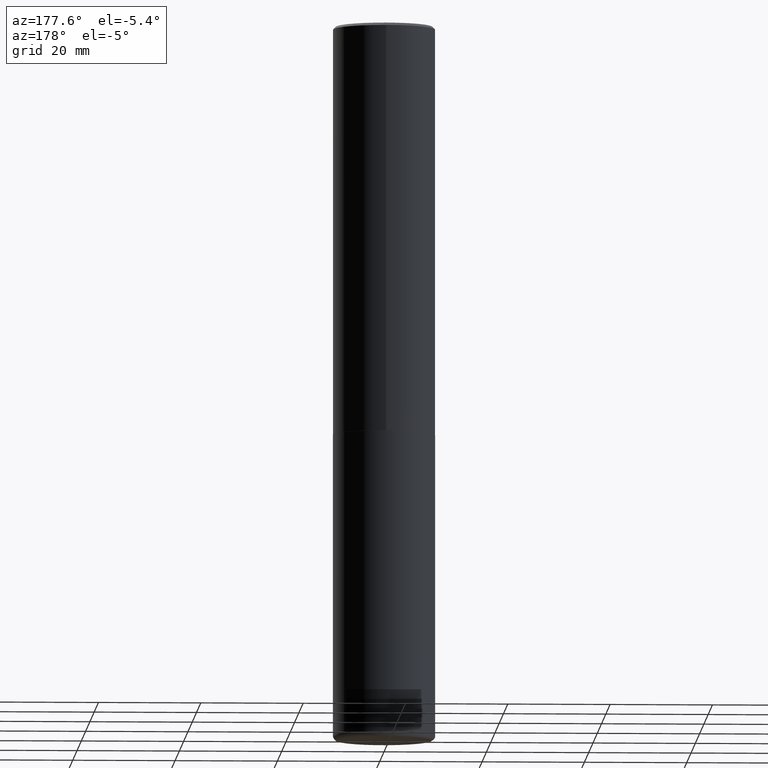
[diagram: clean part render]
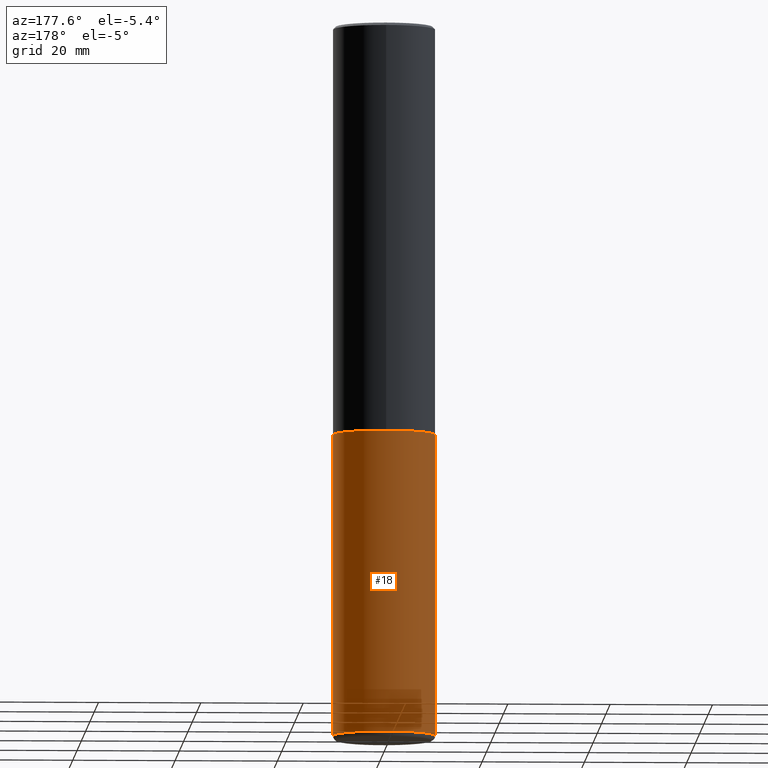
[diagram: same view with one face highlighted and labeled with its STEP entity id]
A machine part, auxiliary view. The second image highlights one B-rep face of the part: STEP entity #18.
In plain terms, the highlighted cylindrical surface (partial cylindrical patch) has radius 10 mm, axis along (-0, 0, 1).
Its self-contained STEP definition (entity closure, byte-faithful):
#18 = ADVANCED_FACE ( 'NONE', ( #237 ), #141, .T. ) ;
#21 = CIRCLE ( 'NONE', #224, 0.3936999999999998834 ) ;
#39 = CIRCLE ( 'NONE', #118, 0.3936999999999999389 ) ;
#51 = CARTESIAN_POINT ( 'NONE',  ( 0.3936999999999999389, -1.374596203102545395E-14, -3.149599999999999511 ) ) ;
#58 = CARTESIAN_POINT ( 'NONE',  ( 0.3936999999999998279, -2.185597488489031278E-14, -5.472400000000000375 ) ) ;
#78 = DIRECTION ( 'NONE',  ( 1.000000000000000000, -6.982962677686269866E-15, 0.000000000000000000 ) ) ;
#81 = EDGE_CURVE ( 'NONE', #160, #253, #39, .T. ) ;
#85 = CARTESIAN_POINT ( 'NONE',  ( -0.3936999999999999389, 2.797406750687513998E-15, -1.936584745033356455E-29 ) ) ;
#96 = DIRECTION ( 'NONE',  ( -2.445468806185136597E-29, 3.491481338843145583E-15, 1.000000000000000000 ) ) ;
#101 = CARTESIAN_POINT ( 'NONE',  ( 7.702248551960704469E-29, -1.099676962482037073E-14, -3.149599999999999511 ) ) ;
#116 = CARTESIAN_POINT ( 'NONE',  ( 0.3936999999999999389, -2.749192406205082822E-15, 1.919750796630859611E-29 ) ) ;
#117 = LINE ( 'NONE', #85, #387 ) ;
#118 = AXIS2_PLACEMENT_3D ( 'NONE', #101, #296, #78 ) ;
#141 = CYLINDRICAL_SURFACE ( 'NONE', #189, 0.3936999999999999389 ) ;
#142 = CARTESIAN_POINT ( 'NONE',  ( 0.000000000000000000, 0.000000000000000000, 0.000000000000000000 ) ) ;
#159 = ORIENTED_EDGE ( 'NONE', *, *, #229, .T. ) ;
#160 = VERTEX_POINT ( 'NONE', #51 ) ;
#186 = ORIENTED_EDGE ( 'NONE', *, *, #283, .F. ) ;
#189 = AXIS2_PLACEMENT_3D ( 'NONE', #142, #200, #329 ) ;
#200 = DIRECTION ( 'NONE',  ( -2.445468806185136597E-29, 3.491481338843145583E-15, 1.000000000000000000 ) ) ;
#211 = LINE ( 'NONE', #116, #259 ) ;
#213 = CARTESIAN_POINT ( 'NONE',  ( 1.338258349496754075E-28, -1.910678247868523272E-14, -5.472400000000000375 ) ) ;
#218 = CARTESIAN_POINT ( 'NONE',  ( -0.3936999999999998279, -1.630937572799772188E-14, -5.472400000000000375 ) ) ;
#224 = AXIS2_PLACEMENT_3D ( 'NONE', #213, #96, #256 ) ;
#229 = EDGE_CURVE ( 'NONE', #374, #253, #117, .T. ) ;
#237 = FACE_OUTER_BOUND ( 'NONE', #407, .T. ) ;
#253 = VERTEX_POINT ( 'NONE', #403 ) ;
#256 = DIRECTION ( 'NONE',  ( 1.000000000000000000, -6.982962677686270655E-15, 0.000000000000000000 ) ) ;
#259 = VECTOR ( 'NONE', #340, 39.37007874015748143 ) ;
#278 = DIRECTION ( 'NONE',  ( -2.445468806185136877E-29, 3.491481338843145188E-15, 1.000000000000000000 ) ) ;
#283 = EDGE_CURVE ( 'NONE', #287, #160, #211, .T. ) ;
#287 = VERTEX_POINT ( 'NONE', #58 ) ;
#296 = DIRECTION ( 'NONE',  ( -2.445468806185136597E-29, 3.491481338843145583E-15, 1.000000000000000000 ) ) ;
#329 = DIRECTION ( 'NONE',  ( 1.000000000000000000, -6.982962677686266711E-15, 4.876176775795935793E-29 ) ) ;
#340 = DIRECTION ( 'NONE',  ( -2.445468806185136877E-29, 3.491481338843145188E-15, 1.000000000000000000 ) ) ;
#351 = ORIENTED_EDGE ( 'NONE', *, *, #81, .F. ) ;
#367 = EDGE_CURVE ( 'NONE', #287, #374, #21, .T. ) ;
#374 = VERTEX_POINT ( 'NONE', #218 ) ;
#387 = VECTOR ( 'NONE', #278, 39.37007874015748143 ) ;
#403 = CARTESIAN_POINT ( 'NONE',  ( -0.3936999999999999389, -1.225436930106528773E-14, -3.149599999999999511 ) ) ;
#407 = EDGE_LOOP ( 'NONE', ( #414, #159, #351, #186 ) ) ;
#414 = ORIENTED_EDGE ( 'NONE', *, *, #367, .T. ) ;